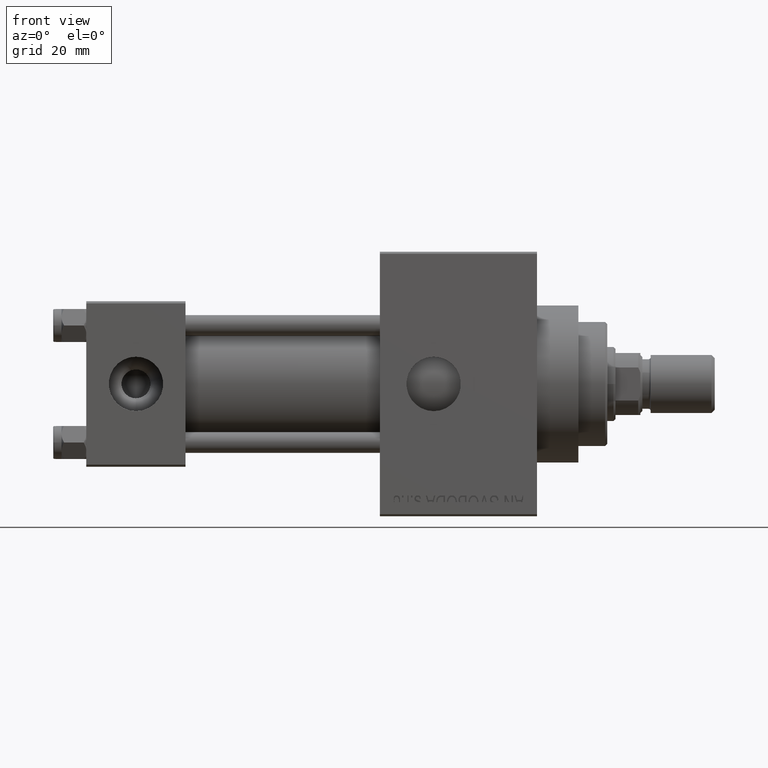
[diagram: clean part render]
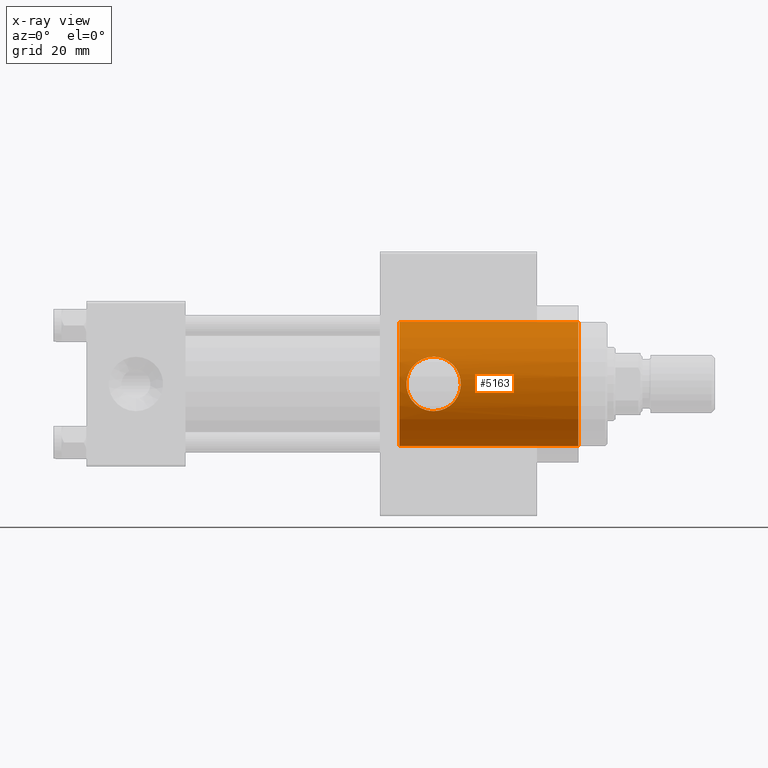
[diagram: x-ray — body ghosted, one internal face saturated and labeled with its STEP entity id]
A machine part, front view, then the same camera in x-ray: the body is ghosted and one INTERNAL B-rep face — a face not visible from any outside direction — is saturated and labeled: STEP entity #5163.
In plain terms, the highlighted cylindrical surface (partial cylindrical patch) has radius 15 mm, axis along (1, 0, 0).
Its self-contained STEP definition (entity closure, byte-faithful):
#342 = CARTESIAN_POINT ( 'NONE',  ( 81.86167835274308402, -13.64268446355266384, 6.237809613683830356 ) ) ;
#499 = CYLINDRICAL_SURFACE ( 'NONE', #26188, 15.00000000000000000 ) ;
#589 = CARTESIAN_POINT ( 'NONE',  ( 80.50854604787429025, -13.92353663429971888, 5.581335305475836783 ) ) ;
#1458 = CARTESIAN_POINT ( 'NONE',  ( 77.76236211784039654, -14.85223465257905140, -2.138549503236199190 ) ) ;
#1638 = CARTESIAN_POINT ( 'NONE',  ( 87.30108931628259938, -13.87684958374495459, 5.696061878517231669 ) ) ;
#1689 = CARTESIAN_POINT ( 'NONE',  ( 78.77663109106886452, -14.45470791799033705, -4.024259088776579674 ) ) ;
#1930 = CARTESIAN_POINT ( 'NONE',  ( 81.06829908847710442, -13.79364648263419468, 5.894697207671341310 ) ) ;
#2177 = VERTEX_POINT ( 'NONE', #9649 ) ;
#3934 = CARTESIAN_POINT ( 'NONE',  ( 82.91258178764385889, -13.52187524401549190, 6.493162044607657002 ) ) ;
#4027 = LINE ( 'NONE', #37390, #15568 ) ;
#4221 = B_SPLINE_CURVE_WITH_KNOTS ( 'NONE', 3,
 ( #30980, #19699, #23301, #22416, #3934, #31224, #342, #12982, #1930, #16589, #589, #45873, #19942, #34576, #26909, #29638, #42023, #41543, #45393, #5044, #27617, #27379, #42262, #14999, #34349, #44290, #38176, #9360, #1458, #30746, #12496, #1689, #27135, #41778, #11383, #18589, #8884, #5287, #26036, #40669, #16348, #37057, #45631, #12737, #9132, #23789, #5512, #13212 ),
 .UNSPECIFIED., .F., .F.,
 ( 4, 2, 2, 2, 2, 2, 2, 2, 2, 2, 2, 2, 2, 2, 2, 2, 2, 2, 2, 2, 2, 2, 2, 4 ),
 ( 0.02083915656667800417, 0.02148971759061580125, 0.02214027861455359833, 0.02344140066242918902, 0.02409196168636696875, 0.02474252271030474501, 0.02539308373424252474, 0.02604364475818030100, 0.02734476680605583271, 0.02864588885393136442, 0.02994701090180689612, 0.03059757192574465851, 0.03124813294968242436, 0.03254925499755795953, 0.03385037704543349124, 0.03515149909330901601, 0.03645262114118455465, 0.03710318216512233092, 0.03775374318906010718, 0.03840430421299789038, 0.03905486523693567358, 0.04035598728481123304, 0.04100654830874903012, 0.04165710933268683414 ),
 .UNSPECIFIED. ) ;
#4290 = EDGE_CURVE ( 'NONE', #15474, #45420, #4027, .T. ) ;
#4400 = EDGE_CURVE ( 'NONE', #24447, #2177, #5202, .T. ) ;
#4749 = CARTESIAN_POINT ( 'NONE',  ( 87.84399376657894720, -14.01607983476661445, -5.344707122218384399 ) ) ;
#5044 = CARTESIAN_POINT ( 'NONE',  ( 77.76285658914042642, -14.85202909967944329, 2.139850390440420913 ) ) ;
#5163 = ADVANCED_FACE ( 'NONE', ( #14912, #25949 ), #499, .F. ) ;
#5202 = LINE ( 'NONE', #23930, #14742 ) ;
#5236 = CARTESIAN_POINT ( 'NONE',  ( 90.57975445926744840, -14.99989228947896258, -0.4396576369081861557 ) ) ;
#5287 = CARTESIAN_POINT ( 'NONE',  ( 80.50968890162148739, -13.92325398619110111, -5.582033263514126986 ) ) ;
#5512 = CARTESIAN_POINT ( 'NONE',  ( 83.77976576957227905, -13.47974777212096242, -6.580000000000007176 ) ) ;
#5951 = CARTESIAN_POINT ( 'NONE',  ( 88.34654763100800778, -14.16034374859561673, 4.958241700614719250 ) ) ;
#6582 = AXIS2_PLACEMENT_3D ( 'NONE', #10796, #13712, #10556 ) ;
#6835 = CARTESIAN_POINT ( 'NONE',  ( 75.73999999999999488, 0.000000000000000000, 0.000000000000000000 ) ) ;
#7658 = CARTESIAN_POINT ( 'NONE',  ( 90.22642608447472412, -14.84818643133566951, -2.138984829998647808 ) ) ;
#8362 = CARTESIAN_POINT ( 'NONE',  ( 86.14192174141365399, -13.64329079840354986, -6.236468868897488527 ) ) ;
#8884 = CARTESIAN_POINT ( 'NONE',  ( 80.15751958955149803, -14.01568356182467845, -5.345718961352347698 ) ) ;
#9132 = CARTESIAN_POINT ( 'NONE',  ( 83.12272966873510427, -13.50651032499738058, -6.524934783076415279 ) ) ;
#9360 = CARTESIAN_POINT ( 'NONE',  ( 77.63525833330916726, -14.90662513822958601, -1.725834680156190570 ) ) ;
#9649 = CARTESIAN_POINT ( 'NONE',  ( 119.0000000000000142, 1.836970198721029589E-15, 15.00000000000000000 ) ) ;
#9969 = DIRECTION ( 'NONE',  ( 0.000000000000000000, 0.000000000000000000, -1.000000000000000000 ) ) ;
#9970 = VERTEX_POINT ( 'NONE', #30390 ) ;
#10315 = CIRCLE ( 'NONE', #37907, 15.00000000000000000 ) ;
#10383 = EDGE_LOOP ( 'NONE', ( #40467, #34393 ) ) ;
#10425 = CIRCLE ( 'NONE', #6582, 15.00000000000000000 ) ;
#10556 = DIRECTION ( 'NONE',  ( 0.000000000000000000, 0.000000000000000000, -1.000000000000000000 ) ) ;
#10796 = CARTESIAN_POINT ( 'NONE',  ( 119.0000000000000142, 0.000000000000000000, 0.000000000000000000 ) ) ;
#11383 = CARTESIAN_POINT ( 'NONE',  ( 79.65891463605998979, -14.16065007311136092, -4.949399701149239661 ) ) ;
#12496 = CARTESIAN_POINT ( 'NONE',  ( 78.30090292776974081, -14.63334225918083042, -3.316404157168725941 ) ) ;
#12683 = CARTESIAN_POINT ( 'NONE',  ( 84.43405175477772673, -13.47974777212096065, 6.580000000000002736 ) ) ;
#12737 = CARTESIAN_POINT ( 'NONE',  ( 82.90805391893896115, -13.52226282640781108, -6.492353317420136882 ) ) ;
#12928 = CARTESIAN_POINT ( 'NONE',  ( 90.35400523561418140, -14.90213545262843553, -1.723442878130793554 ) ) ;
#12982 = CARTESIAN_POINT ( 'NONE',  ( 81.26430108105010675, -13.75315794831779570, 5.988232083493418401 ) ) ;
#13212 = CARTESIAN_POINT ( 'NONE',  ( 84.00000000000000000, -13.47974777212095887, -6.580000000000002736 ) ) ;
#13712 = DIRECTION ( 'NONE',  ( 1.000000000000000000, 0.000000000000000000, 0.000000000000000000 ) ) ;
#14742 = VECTOR ( 'NONE', #38792, 1000.000000000000000 ) ;
#14912 = FACE_BOUND ( 'NONE', #10383, .T. ) ;
#14999 = CARTESIAN_POINT ( 'NONE',  ( 77.43084565717525436, -14.99523278132285320, 0.4364235941210355407 ) ) ;
#15474 = VERTEX_POINT ( 'NONE', #35887 ) ;
#15568 = VECTOR ( 'NONE', #37617, 1000.000000000000000 ) ;
#15581 = CARTESIAN_POINT ( 'NONE',  ( 84.00000000000000000, -13.47974777212095887, -6.580000000000002736 ) ) ;
#16061 = CARTESIAN_POINT ( 'NONE',  ( 85.72150176663785714, -13.58266914400428682, -6.365534311957658176 ) ) ;
#16295 = CARTESIAN_POINT ( 'NONE',  ( 90.40804349032755738, -14.92531832247591161, -1.510180672733298923 ) ) ;
#16348 = CARTESIAN_POINT ( 'NONE',  ( 81.26391858364705456, -13.75322890288301458, -5.988071678680283227 ) ) ;
#16589 = CARTESIAN_POINT ( 'NONE',  ( 80.69095337298264781, -13.87874643593712953, 5.691444089594268618 ) ) ;
#17655 = DIRECTION ( 'NONE',  ( 1.000000000000000000, 0.000000000000000000, 0.000000000000000000 ) ) ;
#17882 = CARTESIAN_POINT ( 'NONE',  ( 119.0000000000000142, 0.000000000000000000, -15.00000000000000000 ) ) ;
#18589 = CARTESIAN_POINT ( 'NONE',  ( 79.98739416038097261, -14.06342753315276894, -5.219250321129043080 ) ) ;
#19007 = EDGE_CURVE ( 'NONE', #2177, #45420, #10425, .T. ) ;
#19409 = CARTESIAN_POINT ( 'NONE',  ( 88.01682385340082249, -14.06462955860984465, -5.216021925337313903 ) ) ;
#19699 = CARTESIAN_POINT ( 'NONE',  ( 83.78319494601296924, -13.47974777212096242, 6.580000000000003624 ) ) ;
#19893 = CARTESIAN_POINT ( 'NONE',  ( 90.49330976721962827, -14.96212495205843851, 1.086408634742477064 ) ) ;
#19942 = CARTESIAN_POINT ( 'NONE',  ( 79.98527633074679954, -14.06402908009890140, 5.217639399048800364 ) ) ;
#20118 = CARTESIAN_POINT ( 'NONE',  ( 89.90247971338868638, -14.71460193619369328, 2.940356773719575934 ) ) ;
#20196 = EDGE_LOOP ( 'NONE', ( #21021, #22152, #31739, #22619 ) ) ;
#20359 = CARTESIAN_POINT ( 'NONE',  ( 90.58012121812993200, -15.00005317434620977, 0.2142933741435527617 ) ) ;
#20523 = EDGE_CURVE ( 'NONE', #9970, #46450, #4221, .T. ) ;
#20608 = CARTESIAN_POINT ( 'NONE',  ( 90.53660967087539291, -14.98081735429026651, -0.8707480482462690574 ) ) ;
#21021 = ORIENTED_EDGE ( 'NONE', *, *, #39244, .F. ) ;
#21337 = CARTESIAN_POINT ( 'NONE',  ( 75.73999999999999488, 1.836970198721029589E-15, 15.00000000000000000 ) ) ;
#22152 = ORIENTED_EDGE ( 'NONE', *, *, #4400, .T. ) ;
#22416 = CARTESIAN_POINT ( 'NONE',  ( 83.13064385872415585, -13.50600289092207085, 6.525983889071673261 ) ) ;
#22619 = ORIENTED_EDGE ( 'NONE', *, *, #4290, .F. ) ;
#23020 = CARTESIAN_POINT ( 'NONE',  ( 86.93549082565199626, -13.79016538881783660, -5.904597049044162382 ) ) ;
#23246 = CARTESIAN_POINT ( 'NONE',  ( 89.70288243393881089, -14.63479585642884828, -3.310293569519746182 ) ) ;
#23301 = CARTESIAN_POINT ( 'NONE',  ( 83.56596667356102159, -13.48498123534775672, 6.569312056245870224 ) ) ;
#23789 = CARTESIAN_POINT ( 'NONE',  ( 83.55859862117421244, -13.48521609401838894, -6.568831096952393089 ) ) ;
#23930 = CARTESIAN_POINT ( 'NONE',  ( 75.73999999999999488, 1.836970198721029589E-15, 15.00000000000000000 ) ) ;
#24447 = VERTEX_POINT ( 'NONE', #21337 ) ;
#24624 = CARTESIAN_POINT ( 'NONE',  ( 84.00000000000000000, -13.47974777212095887, -6.580000000000002736 ) ) ;
#25706 = DIRECTION ( 'NONE',  ( 0.000000000000000000, 0.000000000000000000, -1.000000000000000000 ) ) ;
#25919 = CARTESIAN_POINT ( 'NONE',  ( 90.15299919068861811, -14.81746657544789691, -2.341560291187426923 ) ) ;
#25949 = FACE_OUTER_BOUND ( 'NONE', #20196, .T. ) ;
#26036 = CARTESIAN_POINT ( 'NONE',  ( 80.69173184761270079, -13.87856594946466515, -5.691879387518341993 ) ) ;
#26188 = AXIS2_PLACEMENT_3D ( 'NONE', #39856, #29551, #25706 ) ;
#26628 = CARTESIAN_POINT ( 'NONE',  ( 84.44091709312741045, -13.47974777212096065, -6.580000000000003624 ) ) ;
#26861 = CARTESIAN_POINT ( 'NONE',  ( 88.95193023626806905, -14.35775282579813172, -4.353636477094009472 ) ) ;
#26909 = CARTESIAN_POINT ( 'NONE',  ( 79.49693698350255033, -14.21129406587662203, 4.802528194119434879 ) ) ;
#27135 = CARTESIAN_POINT ( 'NONE',  ( 79.04629085474375927, -14.35831245774743969, -4.352000070746989913 ) ) ;
#27379 = CARTESIAN_POINT ( 'NONE',  ( 77.50728137029051368, -14.96186780496583779, 1.090058911884865589 ) ) ;
#27617 = CARTESIAN_POINT ( 'NONE',  ( 77.63638581349506751, -14.90614495936063832, 1.729077508135206553 ) ) ;
#27799 = CARTESIAN_POINT ( 'NONE',  ( 84.86672476049628244, -13.50078989524305229, 6.537419788987843816 ) ) ;
#29551 = DIRECTION ( 'NONE',  ( 1.000000000000000000, -0.000000000000000000, -0.000000000000000000 ) ) ;
#29638 = CARTESIAN_POINT ( 'NONE',  ( 79.04477404318276967, -14.35885351510376040, 4.350166670407226377 ) ) ;
#29928 = B_SPLINE_CURVE_WITH_KNOTS ( 'NONE', 3,
 ( #15581, #26628, #30696, #16061, #8362, #23020, #37645, #4749, #19409, #45113, #36945, #26861, #41493, #23246, #34296, #25919, #7658, #12928, #16295, #20608, #5236, #20359, #41726, #42682, #19893, #38829, #34998, #20118, #34530, #30926, #34759, #5951, #35243, #38126, #1638, #45580, #45821, #45342, #31165, #27799, #12683, #42212 ),
 .UNSPECIFIED., .F., .F.,
 ( 4, 2, 2, 2, 2, 2, 2, 2, 2, 2, 2, 2, 2, 2, 2, 2, 2, 2, 2, 2, 4 ),
 ( 0.000000000000000000, 0.001302447285417404534, 0.002604894570834809069, 0.003907341856252214037, 0.004558565498960899173, 0.005209789141669584310, 0.006512236427086980604, 0.007814683712504376031, 0.008465907355213067240, 0.009117130997921756713, 0.01041957828333912525, 0.01107080192604780952, 0.01172202556875649726, 0.01302447285417386580, 0.01432692013959123607, 0.01562936742500860635, 0.01693181471042597488, 0.01758303835313465915, 0.01823426199584334342, 0.01953670928126067380, 0.02083915656667800417 ),
 .UNSPECIFIED. ) ;
#30390 = CARTESIAN_POINT ( 'NONE',  ( 84.00000000000000000, -13.47974777212095887, 6.580000000000000959 ) ) ;
#30696 = CARTESIAN_POINT ( 'NONE',  ( 84.87316574373051026, -13.50139811867546236, -6.536143893246464387 ) ) ;
#30746 = CARTESIAN_POINT ( 'NONE',  ( 78.09395721718536265, -14.71604869449521047, -2.932606174430449464 ) ) ;
#30926 = CARTESIAN_POINT ( 'NONE',  ( 89.22296890531286806, -14.45456171035007742, 4.024795089578237395 ) ) ;
#30980 = CARTESIAN_POINT ( 'NONE',  ( 84.00000000000000000, -13.47974777212095887, 6.580000000000000959 ) ) ;
#31165 = CARTESIAN_POINT ( 'NONE',  ( 85.72738229337593907, -13.58322368116304091, 6.364371117434817648 ) ) ;
#31224 = CARTESIAN_POINT ( 'NONE',  ( 82.27345649452971088, -13.58324995945014280, 6.364304702644875356 ) ) ;
#31739 = ORIENTED_EDGE ( 'NONE', *, *, #19007, .T. ) ;
#34296 = CARTESIAN_POINT ( 'NONE',  ( 89.90496100314864236, -14.71561861235571733, -2.934527236679818074 ) ) ;
#34349 = CARTESIAN_POINT ( 'NONE',  ( 77.42006756141509527, -14.99997036306039533, 0.2190733554723861276 ) ) ;
#34393 = ORIENTED_EDGE ( 'NONE', *, *, #20523, .T. ) ;
#34530 = CARTESIAN_POINT ( 'NONE',  ( 89.69892933739656371, -14.63327528768227204, 3.316712846527275715 ) ) ;
#34576 = CARTESIAN_POINT ( 'NONE',  ( 79.65624331521807733, -14.16146637753284665, 4.947074378092636060 ) ) ;
#34759 = CARTESIAN_POINT ( 'NONE',  ( 88.94767122397597348, -14.35626376569926244, 4.358576204424578826 ) ) ;
#34775 = EDGE_CURVE ( 'NONE', #46450, #9970, #29928, .T. ) ;
#34998 = CARTESIAN_POINT ( 'NONE',  ( 90.23769844279937047, -14.85224310456073304, 2.139178080577199381 ) ) ;
#35243 = CARTESIAN_POINT ( 'NONE',  ( 88.01940850816785655, -14.06206651057377677, 5.227207620255430953 ) ) ;
#35887 = CARTESIAN_POINT ( 'NONE',  ( 75.73999999999999488, 0.000000000000000000, -15.00000000000000000 ) ) ;
#36945 = CARTESIAN_POINT ( 'NONE',  ( 88.50269527074149778, -14.21118671985628801, -4.802809199700706522 ) ) ;
#37057 = CARTESIAN_POINT ( 'NONE',  ( 81.86239657777149148, -13.64255120362250295, -6.238110883350523217 ) ) ;
#37390 = CARTESIAN_POINT ( 'NONE',  ( 75.73999999999999488, 0.000000000000000000, -15.00000000000000000 ) ) ;
#37617 = DIRECTION ( 'NONE',  ( 1.000000000000000000, -0.000000000000000000, -0.000000000000000000 ) ) ;
#37645 = CARTESIAN_POINT ( 'NONE',  ( 87.31096684123875207, -13.87618552960414497, -5.702370364627030952 ) ) ;
#37907 = AXIS2_PLACEMENT_3D ( 'NONE', #6835, #17655, #9969 ) ;
#38126 = CARTESIAN_POINT ( 'NONE',  ( 87.48650847152660504, -13.92228281461390971, 5.584478018863563875 ) ) ;
#38176 = CARTESIAN_POINT ( 'NONE',  ( 77.46260593799073035, -14.98115675273381875, -0.8665568099934259916 ) ) ;
#38792 = DIRECTION ( 'NONE',  ( 1.000000000000000000, -0.000000000000000000, -0.000000000000000000 ) ) ;
#38829 = CARTESIAN_POINT ( 'NONE',  ( 90.36499013257603963, -14.90673487989739421, 1.723694413479795573 ) ) ;
#39244 = EDGE_CURVE ( 'NONE', #24447, #15474, #10315, .T. ) ;
#39856 = CARTESIAN_POINT ( 'NONE',  ( 75.73999999999999488, 0.000000000000000000, 0.000000000000000000 ) ) ;
#40467 = ORIENTED_EDGE ( 'NONE', *, *, #34775, .T. ) ;
#40669 = CARTESIAN_POINT ( 'NONE',  ( 81.06828371259753396, -13.79365488314685884, -5.894672912073674276 ) ) ;
#41493 = CARTESIAN_POINT ( 'NONE',  ( 89.22411835450373019, -14.45495742940398465, -4.023617649562321041 ) ) ;
#41543 = CARTESIAN_POINT ( 'NONE',  ( 78.30105177495188684, -14.63329121316046511, 3.316553775544760274 ) ) ;
#41726 = CARTESIAN_POINT ( 'NONE',  ( 90.56927314805589901, -14.99528481447029016, 0.4348723903635123844 ) ) ;
#41778 = CARTESIAN_POINT ( 'NONE',  ( 79.49983985398336017, -14.21037004882084709, -4.805272457217939497 ) ) ;
#42023 = CARTESIAN_POINT ( 'NONE',  ( 78.77579147565593587, -14.45501835222666820, 4.023081544292843148 ) ) ;
#42212 = CARTESIAN_POINT ( 'NONE',  ( 84.00000000000000000, -13.47974777212095887, 6.580000000000000959 ) ) ;
#42262 = CARTESIAN_POINT ( 'NONE',  ( 77.47433736855528252, -14.97623083975538094, 0.8717692090942594785 ) ) ;
#42682 = CARTESIAN_POINT ( 'NONE',  ( 90.52575784058697650, -14.97627231213754584, 0.8711763860930701320 ) ) ;
#44290 = CARTESIAN_POINT ( 'NONE',  ( 77.41986582468582867, -15.00005885823555651, -0.4320305088093647217 ) ) ;
#45113 = CARTESIAN_POINT ( 'NONE',  ( 88.34571810031501116, -14.16206893639053455, -4.945350623307064097 ) ) ;
#45342 = CARTESIAN_POINT ( 'NONE',  ( 86.13878146177970052, -13.64286136602062349, 6.237365205955835989 ) ) ;
#45393 = CARTESIAN_POINT ( 'NONE',  ( 78.09399458136053340, -14.71603582678075739, 2.932578663241303563 ) ) ;
#45420 = VERTEX_POINT ( 'NONE', #17882 ) ;
#45580 = CARTESIAN_POINT ( 'NONE',  ( 86.92351769146443985, -13.79190775013061376, 5.898758844508490640 ) ) ;
#45631 = CARTESIAN_POINT ( 'NONE',  ( 82.27329279487686620, -13.58336116659820014, -6.364061093077213016 ) ) ;
#45821 = CARTESIAN_POINT ( 'NONE',  ( 86.73052902550058718, -13.75215651404908002, 5.990516584930650090 ) ) ;
#45873 = CARTESIAN_POINT ( 'NONE',  ( 80.15570704918299327, -14.01617672543312132, 5.344433197287076887 ) ) ;
#46450 = VERTEX_POINT ( 'NONE', #24624 ) ;